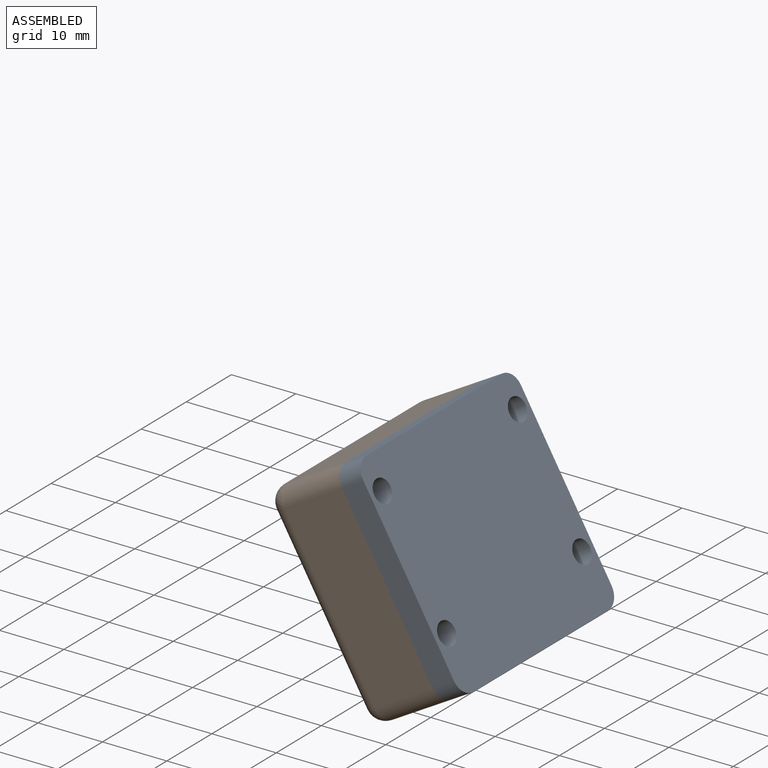
[diagram: assembled view]
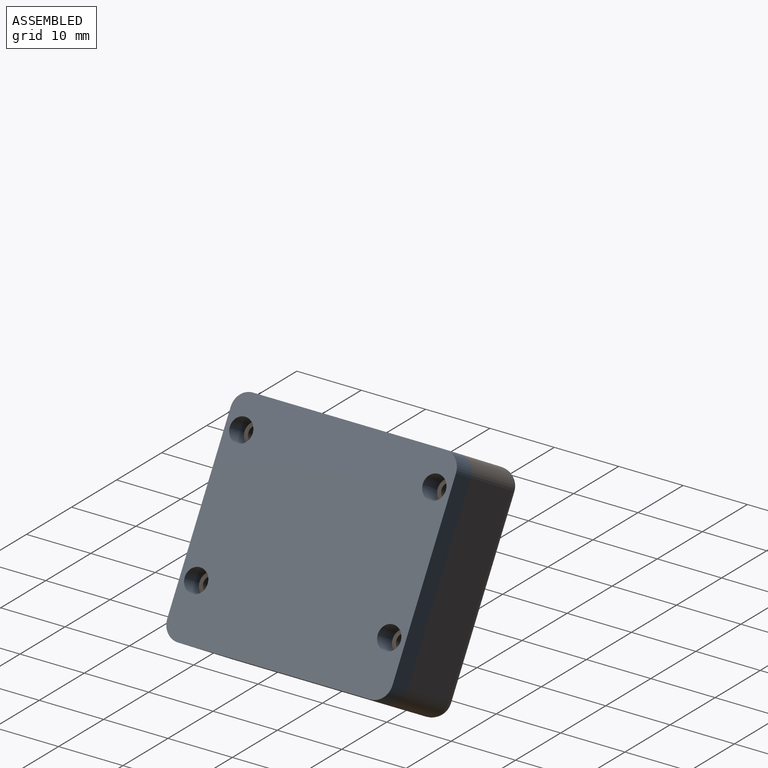
[diagram: assembled view, second angle]
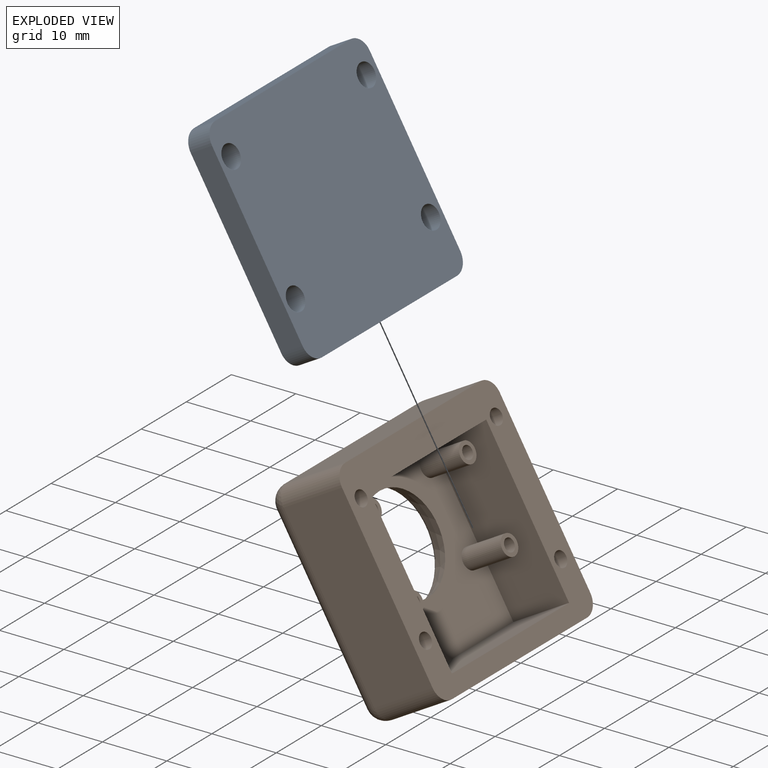
[diagram: exploded view]
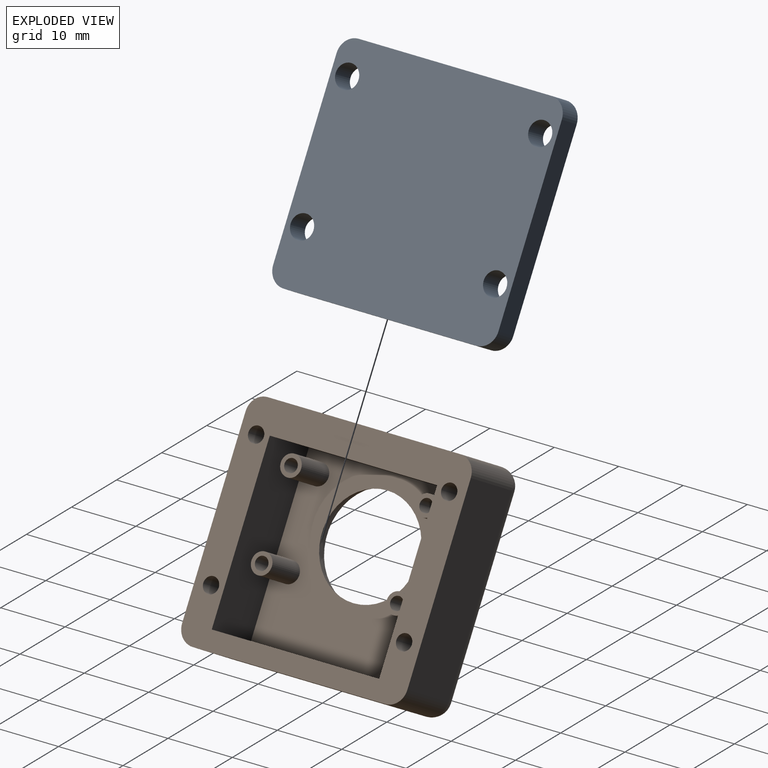
[diagram: exploded view, second angle]
ASSEMBLY  parts=2 mates=3
PART A: 14 faces, bbox 19.9x35x30.7 mm
  f0: plane 35x28.76mm, normal (-0.87,0,-0.5), area 1117.1mm2, adj f1,f2,f3,f4,f5,f6,f7,f8
  f1: plane 26.27x17.36mm, normal (0,1,0), area 107.2mm2, adj f0,f2,f8,f9
  f2: cylinder r=2.54mm len=4.57mm, axis (0.87,0,0.5), area 15.2mm2, adj f0,f1,f3,f9
  f3: plane 29.92x3.3mm, normal (-0.5,0,0.87), area 114mm2, adj f0,f2,f4,f9
  f4: cylinder r=2.54mm len=4.57mm, axis (0.87,0,0.5), area 15.2mm2, adj f0,f3,f5,f9
  f5: plane 26.27x17.36mm, normal (0,-1,0), area 107.2mm2, adj f0,f4,f6,f9
  f6: cylinder r=2.54mm len=4.57mm, axis (0.87,0,0.5), area 15.2mm2, adj f0,f5,f7,f9
  f7: plane 29.92x3.3mm, normal (0.5,0,-0.87), area 114mm2, adj f0,f6,f8,f9
  f8: cylinder r=2.54mm len=4.57mm, axis (0.87,0,0.5), area 15.2mm2, adj f0,f1,f7,f9
  f9: plane 35x28.76mm, normal (0.87,0,0.5), area 1117.1mm2, adj f1,f2,f3,f4,f5,f6,f7,f8
  f10: cylinder r=1.78mm len=5.08mm, axis (0.87,0,0.5), area 42.6mm2, adj f0,f9
  f11: cylinder r=1.78mm len=5.08mm, axis (0.87,0,0.5), area 42.6mm2, adj f0,f9
  f12: cylinder r=1.78mm len=5.08mm, axis (0.87,0,0.5), area 42.6mm2, adj f0,f9
  f13: cylinder r=1.78mm len=5.08mm, axis (0.87,0,0.5), area 42.6mm2, adj f0,f9
PART B: 49 faces, bbox 26.9x35x34.3 mm
  f0: plane 29.59x23.12mm, normal (0,1,0), area 294.2mm2, adj f28,f37,f42,f43
  f1: plane 29.59x23.12mm, normal (0,-1,0), area 294.2mm2, adj f28,f38,f44,f45
  f2: plane 29.92x24.36mm, normal (-0.87,0,-0.5), area 583.2mm2, adj f5,f39,f42,f45,f48
  f3: plane 26x22.3mm, normal (0.87,0,0.5), area 461.1mm2, adj f4,f8,f12,f16,f20,f24,f25,f26
  f4: cone r=7.5mm half-angle=15deg, axis (-0.87,0,-0.5), area 114.6mm2, adj f3,f5
  f5: torus R=9.07mm, axis (-0.87,0,-0.5), area 69.9mm2, adj f2,f4
  f6: plane 29.92x9.06mm, normal (0.5,0,-0.87), area 312.9mm2, adj f28,f37,f38,f39
  f7: plane 29.92x9.06mm, normal (-0.5,0,0.87), area 312.9mm2, adj f28,f43,f44,f48
  f8: cylinder r=1.59mm len=7.68mm, axis (-0.87,0,-0.5), area 70.2mm2, adj f3,f9
  f9: plane 3.18x2.75mm, normal (0.87,0,0.5), area 4.8mm2, adj f8,f11
  f10: plane 2x1.73mm, normal (0.87,0,0.5), area 3.1mm2, adj f11
  f11: cylinder r=1mm len=9.26mm, axis (0.87,0,0.5), area 59.9mm2, adj f9,f10
  f12: cylinder r=1.59mm len=7.68mm, axis (-0.87,0,-0.5), area 70.2mm2, adj f3,f13
  f13: plane 3.18x2.75mm, normal (0.87,0,0.5), area 4.8mm2, adj f12,f15
  f14: plane 2x1.73mm, normal (0.87,0,0.5), area 3.1mm2, adj f15
  f15: cylinder r=1mm len=9.26mm, axis (0.87,0,0.5), area 59.9mm2, adj f13,f14
  f16: cylinder r=1.59mm len=7.68mm, axis (-0.87,0,-0.5), area 70.2mm2, adj f3,f17
  f17: plane 3.18x2.75mm, normal (0.87,0,0.5), area 4.8mm2, adj f16,f19
  f18: plane 2x1.73mm, normal (0.87,0,0.5), area 3.1mm2, adj f19
  f19: cylinder r=1mm len=9.26mm, axis (0.87,0,0.5), area 59.9mm2, adj f17,f18
  f20: cylinder r=1.59mm len=7.68mm, axis (-0.87,0,-0.5), area 70.2mm2, adj f3,f21
  f21: plane 3.18x2.75mm, normal (0.87,0,0.5), area 4.8mm2, adj f20,f23
  f22: plane 2x1.73mm, normal (0.87,0,0.5), area 3.1mm2, adj f23
  f23: cylinder r=1mm len=9.26mm, axis (0.87,0,0.5), area 59.9mm2, adj f21,f22
  f24: plane 27.3x21.54mm, normal (0,1,0), area 257.5mm2, adj f3,f26,f27,f28
  f25: plane 27.3x21.54mm, normal (0,-1,0), area 257.5mm2, adj f3,f26,f27,f28
  f26: plane 26x8.66mm, normal (-0.5,0,0.87), area 260mm2, adj f3,f24,f25,f28
  f27: plane 26x8.66mm, normal (0.5,0,-0.87), area 260mm2, adj f3,f24,f25,f28
  f28: plane 35x28.76mm, normal (0.87,0,0.5), area 469.2mm2, adj f0,f1,f6,f7,f24,f25,f26,f27
  f29: plane 2.4x2.08mm, normal (0.87,0,0.5), area 4.5mm2, adj f30
  f30: cylinder r=1.2mm len=11.36mm, axis (-0.87,0,-0.5), area 88.4mm2, adj f28,f29
  f31: plane 2.4x2.08mm, normal (0.87,0,0.5), area 4.5mm2, adj f32
  f32: cylinder r=1.2mm len=11.36mm, axis (-0.87,0,-0.5), area 88.4mm2, adj f28,f31
  f33: plane 2.4x2.08mm, normal (0.87,0,0.5), area 4.5mm2, adj f34
  f34: cylinder r=1.2mm len=11.36mm, axis (-0.87,0,-0.5), area 88.4mm2, adj f28,f33
  f35: plane 2.4x2.08mm, normal (0.87,0,0.5), area 4.5mm2, adj f36
  f36: cylinder r=1.2mm len=11.36mm, axis (-0.87,0,-0.5), area 88.4mm2, adj f28,f35
  f37: cylinder r=2.54mm len=10.33mm, axis (-0.87,0,-0.5), area 41.7mm2, adj f0,f6,f28,f40
  f38: cylinder r=2.54mm len=10.33mm, axis (0.87,0,0.5), area 41.7mm2, adj f1,f6,f28,f41
  f39: cylinder r=2.54mm len=29.92mm, axis (0,1,0), area 119.4mm2, adj f2,f6,f40,f41
  f40: sphere r=2.54mm, area 10.1mm2, adj f37,f39,f42
  f41: sphere r=2.54mm, area 10.1mm2, adj f38,f39,f45
  f42: cylinder r=2.54mm len=25.63mm, axis (-0.5,0,0.87), area 112.2mm2, adj f0,f2,f40,f46
  f43: cylinder r=2.54mm len=10.33mm, axis (-0.87,0,-0.5), area 41.7mm2, adj f0,f7,f28,f46
  f44: cylinder r=2.54mm len=10.33mm, axis (0.87,0,0.5), area 41.7mm2, adj f1,f7,f28,f47
  f45: cylinder r=2.54mm len=25.63mm, axis (0.5,0,-0.87), area 112.2mm2, adj f1,f2,f41,f47
  f46: sphere r=2.54mm, area 10.1mm2, adj f42,f43,f48
  f47: sphere r=2.54mm, area 10.1mm2, adj f44,f45,f48
  f48: cylinder r=2.54mm len=29.92mm, axis (0,-1,0), area 119.4mm2, adj f2,f7,f46,f47
PLACE A t=(-20.07,-10.28,-5.38)mm
PLACE B t=(-24.4,-10.28,-7.88)mm fixed
MATE planar A.f3 <-> B.f7  axis (-0.5,0,0.87) through (-27.95,-10.28,28.08)mm
MATE planar B.f28 <-> A.f0  axis (0.87,0,0.5) through (-21.9,-10.28,13.8)mm
MATE planar B.f1 <-> A.f5  axis (0,-1,0) through (-32.86,-27.78,22.31)mm
